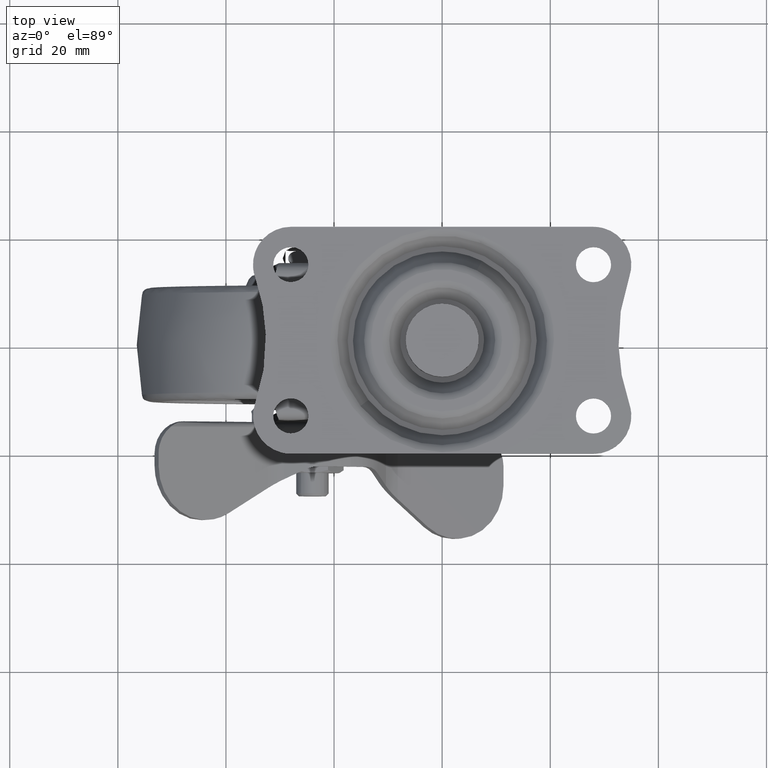
[diagram: clean part render]
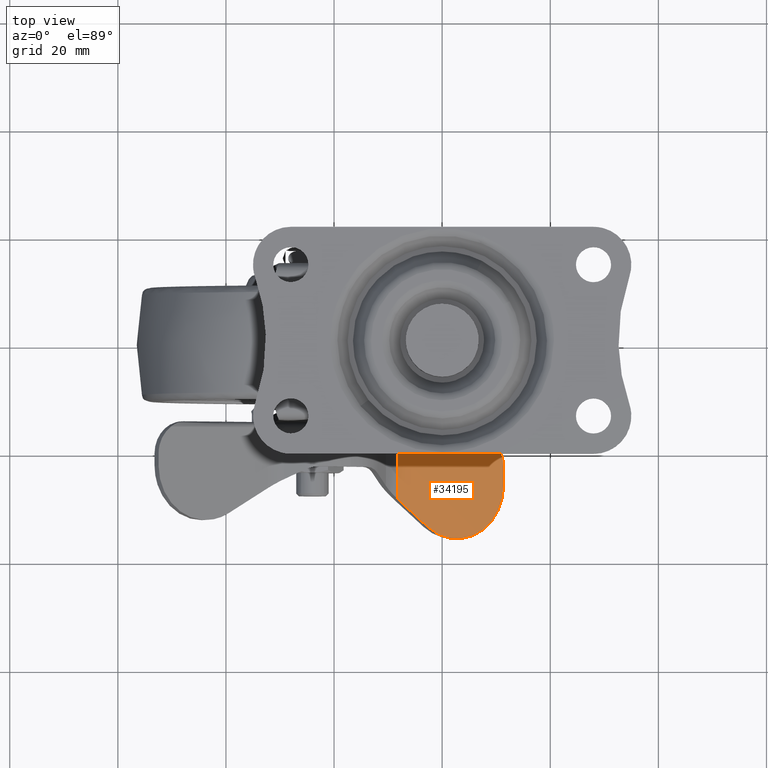
[diagram: same view with one face highlighted and labeled with its STEP entity id]
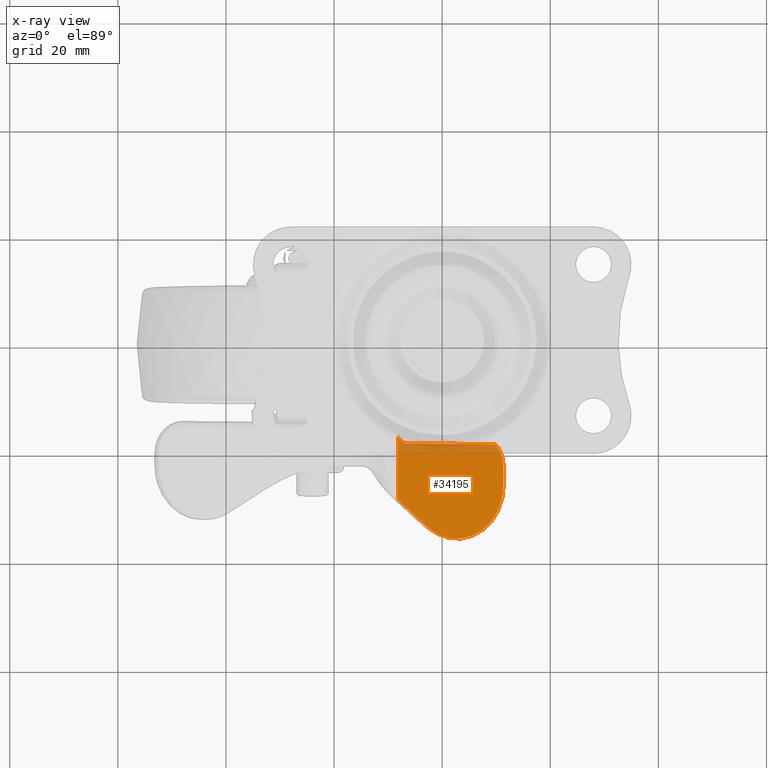
[diagram: x-ray of the same camera — body ghosted, the highlighted face saturated]
A machine part, top view. The second image highlights one B-rep face of the part: STEP entity #34195.
The next image is the same camera in x-ray: the body ghosted, the highlighted face saturated — about 12% of this face is hidden behind the body in this view.
In plain terms, the highlighted face is a freeform B-spline surface patch.
Its self-contained STEP definition (entity closure, byte-faithful):
#31122=CARTESIAN_POINT('',(-7.104958842800755,-17.089322713549979,-31.000012490722430));
#31123=VERTEX_POINT('',#31122);
#31169=CARTESIAN_POINT('',(-5.591046071676140,-18.200001000000050,-31.000015266723800));
#31170=VERTEX_POINT('',#31169);
#31194=CARTESIAN_POINT('',(-5.591046071676140,-18.200001000000050,-31.000015266723800));
#31195=CARTESIAN_POINT('',(-7.104958842800755,-17.089322713549979,-31.000012490722430));
#31196=QUASI_UNIFORM_CURVE('',1,(#31194,#31195),.UNSPECIFIED.,.F.,.U.);
#31197=EDGE_CURVE('',#31170,#31123,#31196,.T.);
#31218=CARTESIAN_POINT('',(13.827020519288840,-18.200001000000000,-31.000052187661101));
#31219=VERTEX_POINT('',#31218);
#31259=CARTESIAN_POINT('',(13.827020519288840,-18.200001000000000,-31.000052187661101));
#31260=CARTESIAN_POINT('',(-5.591046071676140,-18.200001000000050,-31.000015266723800));
#31261=QUASI_UNIFORM_CURVE('',1,(#31259,#31260),.UNSPECIFIED.,.F.,.U.);
#31262=EDGE_CURVE('',#31219,#31170,#31261,.T.);
#32966=CARTESIAN_POINT('',(15.500001301542300,-22.354033037064251,-31.000055368617300));
#32967=VERTEX_POINT('',#32966);
#32968=CARTESIAN_POINT('',(15.500001301542300,-22.354033037064251,-31.000055368617300));
#32969=CARTESIAN_POINT('',(15.500220859226671,-21.780306661388948,-31.000055369034762));
#32970=CARTESIAN_POINT('',(15.375470289567700,-20.919921676907439,-31.000055131837719));
#32971=CARTESIAN_POINT('',(14.836675464367790,-19.483800254400592,-31.000054107389190));
#32972=CARTESIAN_POINT('',(14.291293187204200,-18.682236094979078,-31.000053070415461));
#32973=CARTESIAN_POINT('',(13.827020519288840,-18.200001000000000,-31.000052187661101));
#32974=B_SPLINE_CURVE_WITH_KNOTS('',3,(#32968,#32969,#32970,#32971,#32972,#32973),.UNSPECIFIED.,.F.,.U.,(4,1,1,4),(0.000000037104012,1.721100163958568,2.581629625057555,4.589598779467266),.UNSPECIFIED.);
#32975=EDGE_CURVE('',#32967,#31219,#32974,.T.);
#33016=CARTESIAN_POINT('',(-0.703148404698942,-33.593174927246757,-31.000024560427700));
#33017=VERTEX_POINT('',#33016);
#33046=CARTESIAN_POINT('',(15.500001301542300,-25.749646784761449,-31.000055368617399));
#33047=VERTEX_POINT('',#33046);
#33053=CARTESIAN_POINT('',(-0.703148404698942,-33.593174927246757,-31.000024560427700));
#33054=CARTESIAN_POINT('',(-0.039856116459843,-34.118029845243967,-31.000025821591990));
#33055=CARTESIAN_POINT('',(1.345373694383030,-34.952255571096991,-31.000028455427142));
#33056=CARTESIAN_POINT('',(3.615790860299119,-35.658777926437338,-31.000032772330901));
#33057=CARTESIAN_POINT('',(5.635727605757547,-35.808783737203903,-31.000036612979439));
#33058=CARTESIAN_POINT('',(7.379167257573927,-35.609094641676293,-31.000039927903689));
#33059=CARTESIAN_POINT('',(8.734805335859273,-35.244536969121008,-31.000042505472560));
#33060=CARTESIAN_POINT('',(10.027572513920999,-34.700504187633278,-31.000044963504799));
#33061=CARTESIAN_POINT('',(11.336733825164840,-33.926570110414431,-31.000047452703161));
#33062=CARTESIAN_POINT('',(12.568609708375980,-32.888526551661883,-31.000049794955039));
#33063=CARTESIAN_POINT('',(13.685990896344279,-31.573598901075972,-31.000051919513322));
#33064=CARTESIAN_POINT('',(14.676893215470050,-29.913744549191630,-31.000053803583260));
#33065=CARTESIAN_POINT('',(15.349920019923861,-27.907934959922930,-31.000055083257170));
#33066=CARTESIAN_POINT('',(15.500055303802110,-26.420454929010280,-31.000055368720808));
#33067=CARTESIAN_POINT('',(15.500001301542300,-25.749646784761449,-31.000055368617399));
#33068=B_SPLINE_CURVE_WITH_KNOTS('',3,(#33053,#33054,#33055,#33056,#33057,#33058,#33059,#33060,#33061,#33062,#33063,#33064,#33065,#33066,#33067),.UNSPECIFIED.,.F.,.U.,(4,1,1,1,1,1,1,1,1,1,1,1,4),(0.000000215863292,2.537427582866574,4.812379783410268,7.087356615958411,8.574839940842741,10.062287910044541,11.287171156868270,12.774692581363301,14.612127204119350,16.099614478979600,17.937097702207289,20.387031873692891,22.399476788626920),.UNSPECIFIED.);
#33069=EDGE_CURVE('',#33017,#33047,#33068,.T.);
#33457=CARTESIAN_POINT('',(-7.105072145983550,-28.530135609516350,-31.000012387999401));
#33458=VERTEX_POINT('',#33457);
#33459=CARTESIAN_POINT('',(-0.703148404698942,-33.593174927246757,-31.000024560427700));
#33460=CARTESIAN_POINT('',(-7.105072145983550,-28.530135609516350,-31.000012387999401));
#33461=QUASI_UNIFORM_CURVE('',1,(#33459,#33460),.UNSPECIFIED.,.F.,.U.);
#33462=EDGE_CURVE('',#33017,#33458,#33461,.T.);
#33941=CARTESIAN_POINT('',(-7.104958842800755,-17.089322713549979,-31.000012490722430));
#33942=CARTESIAN_POINT('',(-7.105072145983550,-28.530135609516350,-31.000012387999401));
#33943=QUASI_UNIFORM_CURVE('',1,(#33941,#33942),.UNSPECIFIED.,.F.,.U.);
#33944=EDGE_CURVE('',#31123,#33458,#33943,.T.);
#34177=CARTESIAN_POINT('',(-8.234195440113245,-36.681692317516870,-31.000010241117771));
#34178=CARTESIAN_POINT('',(16.629123585146470,-36.681692317516870,-31.000057515497041));
#34179=CARTESIAN_POINT('',(-8.234195440113245,-16.157242249683801,-31.000010241117771));
#34180=CARTESIAN_POINT('',(16.629123585146470,-16.157242249683801,-31.000057515497041));
#34181=B_SPLINE_SURFACE_WITH_KNOTS('',1,1,((#34177,#34179),(#34178,#34180)),.UNSPECIFIED.,.F.,.F.,.U.,(2,2),(2,2),(0.0,24.863319025304669),(0.0,20.524450067833069),.UNSPECIFIED.);
#34182=ORIENTED_EDGE('',*,*,#31262,.T.);
#34183=ORIENTED_EDGE('',*,*,#31197,.T.);
#34184=ORIENTED_EDGE('',*,*,#33944,.T.);
#34185=ORIENTED_EDGE('',*,*,#33462,.F.);
#34186=ORIENTED_EDGE('',*,*,#33069,.T.);
#34187=CARTESIAN_POINT('',(15.500001301542300,-22.354033037064251,-31.000055368617300));
#34188=CARTESIAN_POINT('',(15.500001301542300,-25.749646784761449,-31.000055368617399));
#34189=QUASI_UNIFORM_CURVE('',1,(#34187,#34188),.UNSPECIFIED.,.F.,.U.);
#34190=EDGE_CURVE('',#32967,#33047,#34189,.T.);
#34191=ORIENTED_EDGE('',*,*,#34190,.F.);
#34192=ORIENTED_EDGE('',*,*,#32975,.T.);
#34193=EDGE_LOOP('',(#34182,#34183,#34184,#34185,#34186,#34191,#34192));
#34194=FACE_OUTER_BOUND('',#34193,.T.);
#34195=ADVANCED_FACE('',(#34194),#34181,.T.);